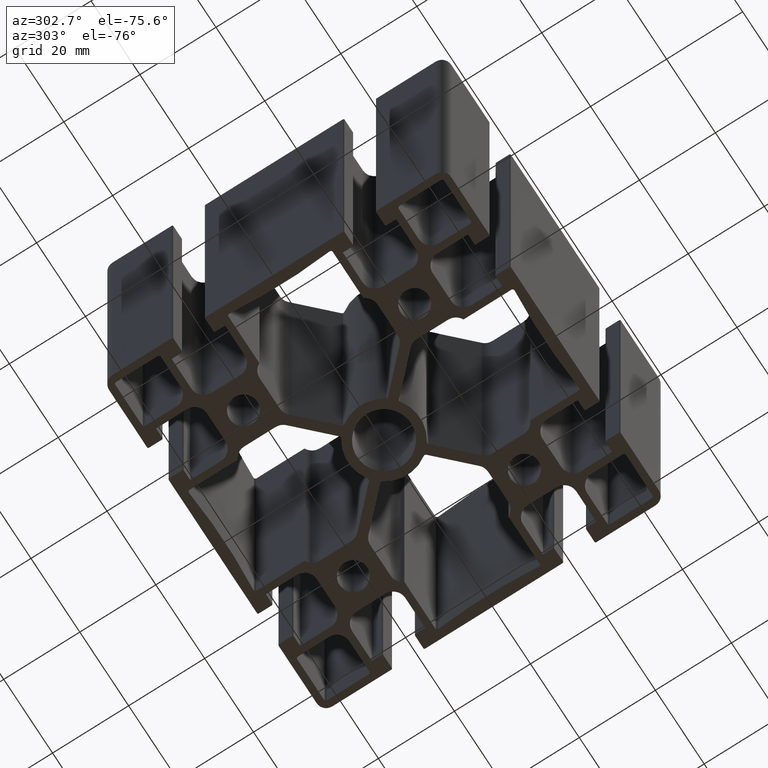
[diagram: clean part render]
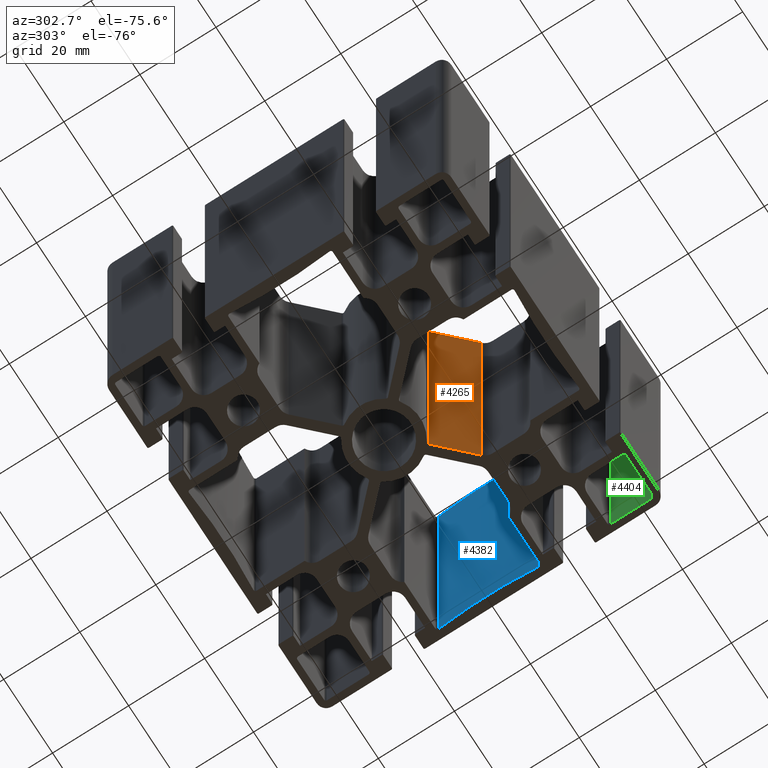
[diagram: same view with three faces highlighted in distinct colors, each labeled with its STEP entity id]
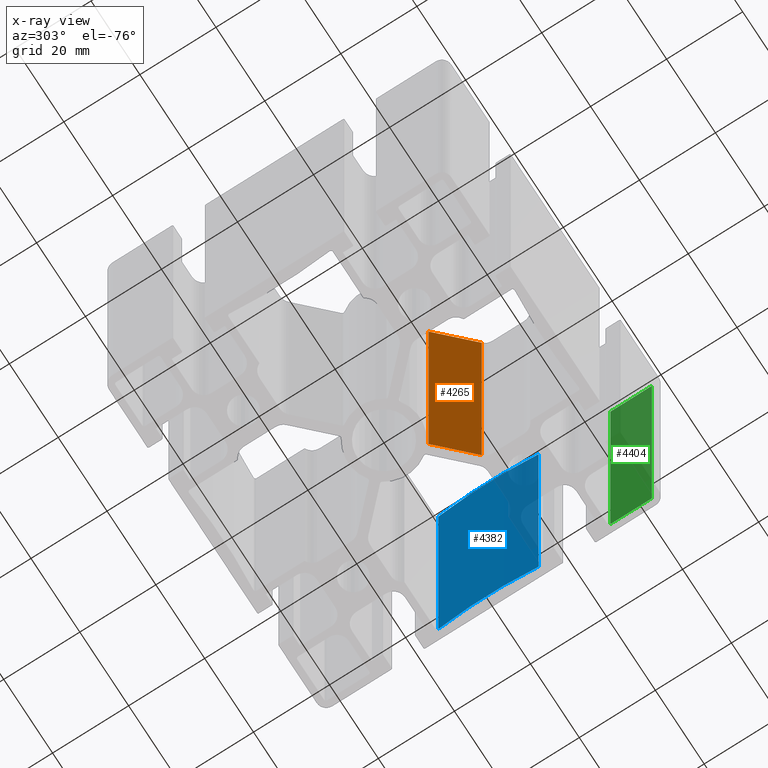
[diagram: x-ray of the same camera — body ghosted, the three highlighted faces saturated]
A machine part, auxiliary view with three faces highlighted in distinct colors.
The next image is the same camera in x-ray (body ghosted, the three faces saturated) — at least one of them is partly hidden behind the body in this view.
Their STEP definitions:

[orange] entity #4265 — the highlighted planar face has unit normal (0.7071, 0.7071, 0).
#51=PLANE('',#4506);
#169=FACE_OUTER_BOUND('',#392,.T.);
#392=EDGE_LOOP('',(#2875,#2876,#2877,#2878));
#657=LINE('',#6341,#1089);
#658=LINE('',#6345,#1090);
#659=LINE('',#6347,#1091);
#660=LINE('',#6348,#1092);
#1089=VECTOR('',#5008,100.);
#1090=VECTOR('',#5013,11.9991424834315);
#1091=VECTOR('',#5014,100.);
#1092=VECTOR('',#5015,11.9991424834315);
#1751=VERTEX_POINT('',#6338);
#1752=VERTEX_POINT('',#6340);
#1753=VERTEX_POINT('',#6344);
#1754=VERTEX_POINT('',#6346);
#2204=EDGE_CURVE('',#1751,#1752,#657,.T.);
#2206=EDGE_CURVE('',#1751,#1753,#658,.T.);
#2207=EDGE_CURVE('',#1753,#1754,#659,.T.);
#2208=EDGE_CURVE('',#1752,#1754,#660,.T.);
#2875=ORIENTED_EDGE('',*,*,#2206,.T.);
#2876=ORIENTED_EDGE('',*,*,#2207,.T.);
#2877=ORIENTED_EDGE('',*,*,#2208,.F.);
#2878=ORIENTED_EDGE('',*,*,#2204,.F.);
#4265=ADVANCED_FACE('',(#169),#51,.F.);
#4506=AXIS2_PLACEMENT_3D('',#6343,#5011,#5012);
#5008=DIRECTION('',(0.,0.,-1.));
#5011=DIRECTION('center_axis',(0.707106781186547,0.707106781186548,0.));
#5012=DIRECTION('ref_axis',(-0.707106781186548,0.707106781186547,0.));
#5013=DIRECTION('',(-0.707106781186548,0.707106781186547,0.));
#5014=DIRECTION('',(0.,0.,-1.));
#5015=DIRECTION('',(-0.707106781186548,0.707106781186547,0.));
#6338=CARTESIAN_POINT('',(14.562741699797,-16.3305086527633,100.));
#6340=CARTESIAN_POINT('',(14.562741699797,-16.3305086527633,0.));
#6341=CARTESIAN_POINT('',(14.562741699797,-16.3305086527633,0.));
#6343=CARTESIAN_POINT('Origin',(14.562741699797,-16.3305086527633,0.));
#6344=CARTESIAN_POINT('',(6.07806668133897,-7.84583363430535,100.));
#6345=CARTESIAN_POINT('',(6.83942911165687,-8.60719606462325,100.));
#6346=CARTESIAN_POINT('',(6.07806668133897,-7.84583363430535,0.));
#6347=CARTESIAN_POINT('',(6.07806668133897,-7.84583363430535,0.));
#6348=CARTESIAN_POINT('',(6.83942911165687,-8.60719606462325,0.));

[blue] entity #4382 — the highlighted cylindrical surface (partial cylindrical patch) has radius 144.5 mm, axis along (0, 0, 1).
#286=FACE_OUTER_BOUND('',#514,.T.);
#514=EDGE_LOOP('',(#3333,#3334,#3335,#3336));
#664=LINE('',#6369,#1096);
#885=LINE('',#7060,#1317);
#1096=VECTOR('',#5037,100.);
#1317=VECTOR('',#5726,100.);
#1637=CIRCLE('',#4748,144.500349611812);
#1638=CIRCLE('',#4749,144.500349611812);
#1759=VERTEX_POINT('',#6362);
#1762=VERTEX_POINT('',#6367);
#1997=VERTEX_POINT('',#7056);
#1998=VERTEX_POINT('',#7058);
#2218=EDGE_CURVE('',#1759,#1762,#664,.T.);
#2557=EDGE_CURVE('',#1997,#1759,#1637,.T.);
#2558=EDGE_CURVE('',#1998,#1762,#1638,.T.);
#2559=EDGE_CURVE('',#1997,#1998,#885,.T.);
#3333=ORIENTED_EDGE('',*,*,#2557,.T.);
#3334=ORIENTED_EDGE('',*,*,#2218,.T.);
#3335=ORIENTED_EDGE('',*,*,#2558,.F.);
#3336=ORIENTED_EDGE('',*,*,#2559,.F.);
#4209=CYLINDRICAL_SURFACE('',#4747,144.500349611812);
#4382=ADVANCED_FACE('',(#286),#4209,.T.);
#4747=AXIS2_PLACEMENT_3D('',#7055,#5720,#5721);
#4748=AXIS2_PLACEMENT_3D('',#7057,#5722,#5723);
#4749=AXIS2_PLACEMENT_3D('',#7059,#5724,#5725);
#5037=DIRECTION('',(0.,0.,-1.));
#5720=DIRECTION('center_axis',(0.,0.,1.));
#5721=DIRECTION('ref_axis',(-0.995847760911224,0.0910342632644569,0.));
#5722=DIRECTION('center_axis',(0.,0.,-1.));
#5723=DIRECTION('ref_axis',(-0.995847760911224,0.0910342632644569,0.));
#5724=DIRECTION('center_axis',(0.,0.,-1.));
#5725=DIRECTION('ref_axis',(-0.995847760911224,0.0910342632644569,0.));
#5726=DIRECTION('',(0.,0.,-1.));
#6362=CARTESIAN_POINT('',(42.8,13.1544828683678,100.));
#6367=CARTESIAN_POINT('',(42.8,13.1544828683678,0.));
#6369=CARTESIAN_POINT('',(42.8,13.1544828683678,0.));
#7055=CARTESIAN_POINT('Origin',(186.700349611812,-2.28641985551798E-14,
0.));
#7056=CARTESIAN_POINT('',(42.8,-13.1544828683678,100.));
#7057=CARTESIAN_POINT('Origin',(186.700349611812,-2.28641985551798E-14,
100.));
#7058=CARTESIAN_POINT('',(42.8,-13.1544828683678,0.));
#7059=CARTESIAN_POINT('Origin',(186.700349611812,-2.28641985551798E-14,
0.));
#7060=CARTESIAN_POINT('',(42.8,-13.1544828683678,0.));

[green] entity #4404 — the highlighted planar face has unit normal (1, 0, 0).
#115=PLANE('',#4795);
#308=FACE_OUTER_BOUND('',#536,.T.);
#536=EDGE_LOOP('',(#3421,#3422,#3423,#3424));
#917=LINE('',#7164,#1349);
#921=LINE('',#7177,#1353);
#922=LINE('',#7179,#1354);
#923=LINE('',#7180,#1355);
#1349=VECTOR('',#5838,100.);
#1353=VECTOR('',#5852,100.);
#1354=VECTOR('',#5855,10.9);
#1355=VECTOR('',#5856,10.9);
#2029=VERTEX_POINT('',#7161);
#2030=VERTEX_POINT('',#7163);
#2033=VERTEX_POINT('',#7173);
#2034=VERTEX_POINT('',#7175);
#2612=EDGE_CURVE('',#2029,#2030,#917,.T.);
#2619=EDGE_CURVE('',#2034,#2033,#921,.T.);
#2620=EDGE_CURVE('',#2029,#2033,#922,.T.);
#2621=EDGE_CURVE('',#2030,#2034,#923,.T.);
#3421=ORIENTED_EDGE('',*,*,#2620,.T.);
#3422=ORIENTED_EDGE('',*,*,#2619,.F.);
#3423=ORIENTED_EDGE('',*,*,#2621,.F.);
#3424=ORIENTED_EDGE('',*,*,#2612,.F.);
#4404=ADVANCED_FACE('',(#308),#115,.F.);
#4795=AXIS2_PLACEMENT_3D('',#7178,#5853,#5854);
#5838=DIRECTION('',(0.,0.,-1.));
#5852=DIRECTION('',(0.,0.,1.));
#5853=DIRECTION('center_axis',(1.,1.62968517376169E-15,0.));
#5854=DIRECTION('ref_axis',(-1.4210854715202E-15,1.,0.));
#5855=DIRECTION('',(-1.62968517376169E-15,1.,0.));
#5856=DIRECTION('',(-1.62968517376169E-15,1.,0.));
#7161=CARTESIAN_POINT('',(43.2,-42.7,100.));
#7163=CARTESIAN_POINT('',(43.2,-42.7,0.));
#7164=CARTESIAN_POINT('',(43.2,-42.7,0.));
#7173=CARTESIAN_POINT('',(43.2,-31.8,100.));
#7175=CARTESIAN_POINT('',(43.2,-31.8,0.));
#7177=CARTESIAN_POINT('',(43.2,-31.8,0.));
#7178=CARTESIAN_POINT('Origin',(43.2,-42.7,0.));
#7179=CARTESIAN_POINT('',(43.2,-21.35,100.));
#7180=CARTESIAN_POINT('',(43.2,-21.35,0.));